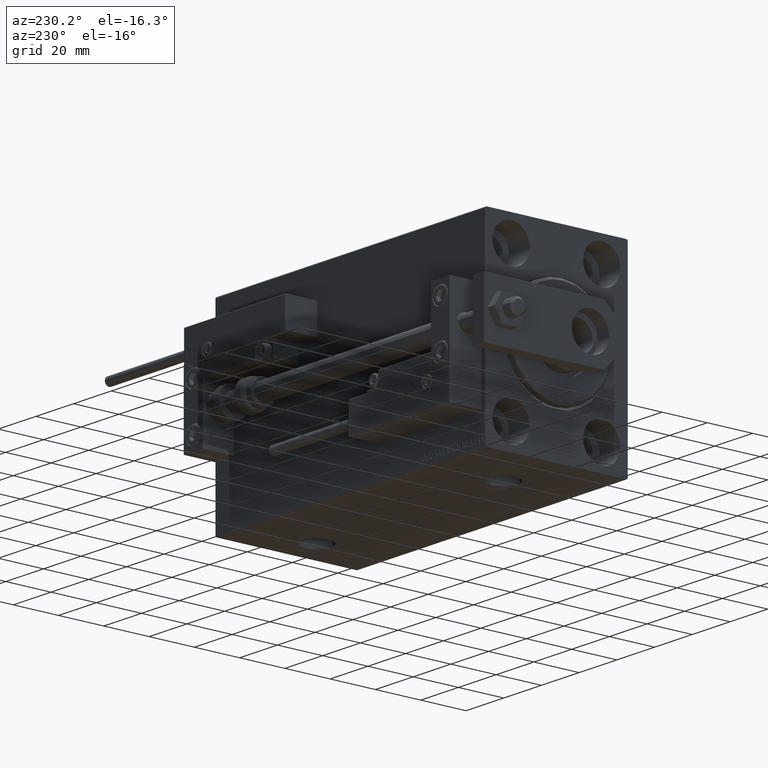
[diagram: clean part render]
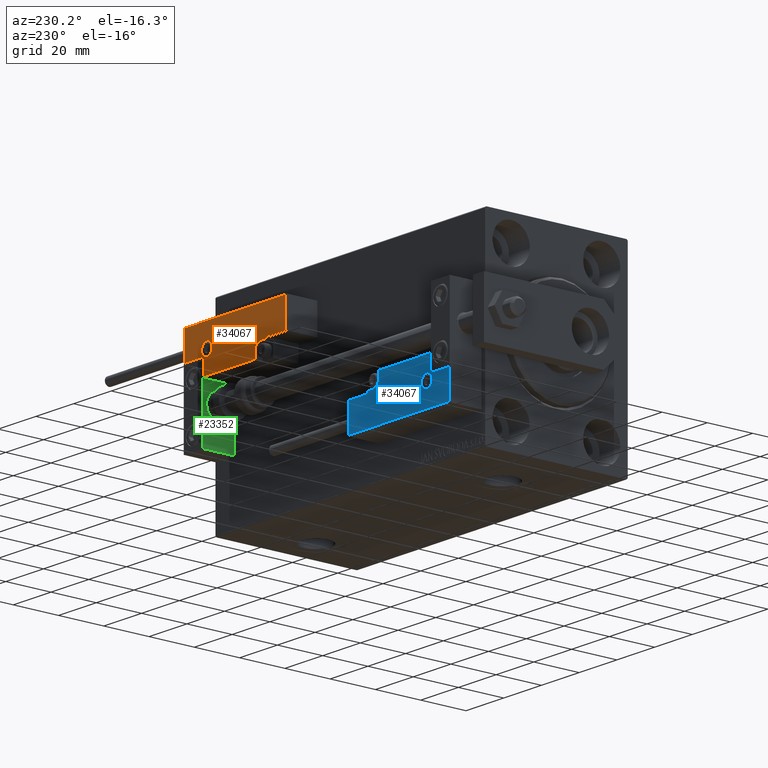
[diagram: same view with three faces highlighted in distinct colors, each labeled with its STEP entity id]
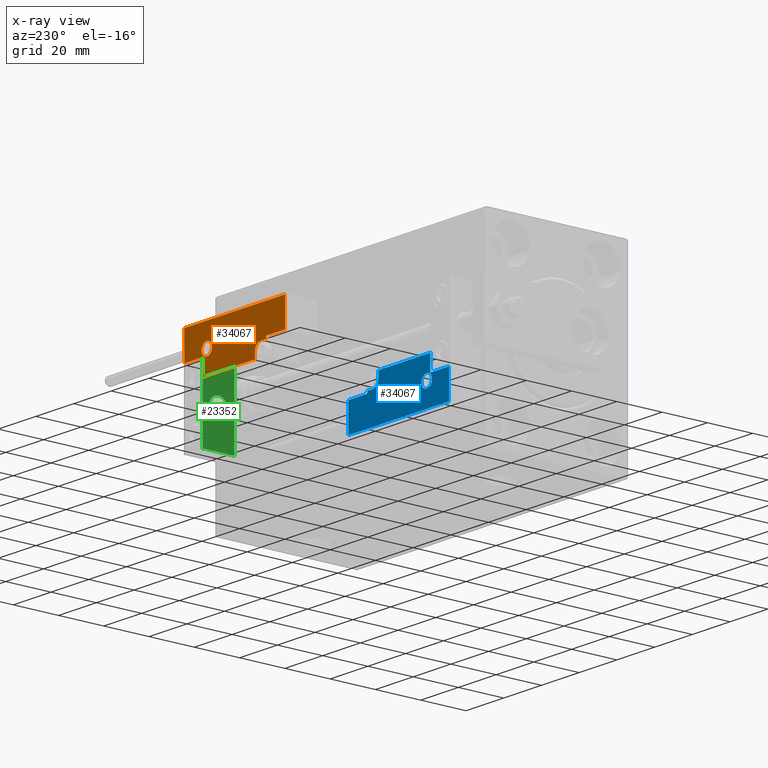
[diagram: x-ray of the same camera — body ghosted, the three highlighted faces saturated]
A machine part, auxiliary view with three faces highlighted in distinct colors.
The next image is the same camera in x-ray (body ghosted, the three faces saturated) — at least one of them is partly hidden behind the body in this view.
Their STEP definitions:

[orange] entity #34067 — the highlighted planar face has unit normal (0, 1, -0).
#299 = EDGE_CURVE ( 'NONE', #3765, #8961, #1059, .T. ) ;
#394 = LINE ( 'NONE', #16296, #12584 ) ;
#492 = CARTESIAN_POINT ( 'NONE',  ( -16.69999999999999218, 0.3000000000000032085, 14.00000000000000000 ) ) ;
#990 = DIRECTION ( 'NONE',  ( 0.000000000000000000, -0.000000000000000000, -1.000000000000000000 ) ) ;
#1059 = CIRCLE ( 'NONE', #29325, 2.800000000000000266 ) ;
#1379 = EDGE_CURVE ( 'NONE', #12995, #25292, #48627, .T. ) ;
#1950 = EDGE_CURVE ( 'NONE', #8961, #3765, #26888, .T. ) ;
#1976 = LINE ( 'NONE', #9274, #39701 ) ;
#2054 = ORIENTED_EDGE ( 'NONE', *, *, #299, .T. ) ;
#2216 = CARTESIAN_POINT ( 'NONE',  ( -26.69999999999994600, 7.300000000000005151, 14.00000000000000000 ) ) ;
#2810 = VERTEX_POINT ( 'NONE', #15941 ) ;
#3420 = ORIENTED_EDGE ( 'NONE', *, *, #1950, .T. ) ;
#3765 = VERTEX_POINT ( 'NONE', #29008 ) ;
#3784 = EDGE_CURVE ( 'NONE', #25292, #51216, #5232, .T. ) ;
#3834 = EDGE_CURVE ( 'NONE', #11864, #12995, #23997, .T. ) ;
#4554 = LINE ( 'NONE', #20445, #12106 ) ;
#5232 = LINE ( 'NONE', #32862, #17790 ) ;
#5248 = LINE ( 'NONE', #21146, #43187 ) ;
#5402 = CARTESIAN_POINT ( 'NONE',  ( 17.00000000000000000, 6.300000000000003375, 14.00000000000000000 ) ) ;
#5691 = ORIENTED_EDGE ( 'NONE', *, *, #3784, .T. ) ;
#6632 = CARTESIAN_POINT ( 'NONE',  ( 10.69999999999999929, 0.3000000000000032085, 14.00000000000000000 ) ) ;
#6730 = FACE_BOUND ( 'NONE', #21912, .T. ) ;
#7604 = CIRCLE ( 'NONE', #25065, 3.299999999999997158 ) ;
#8814 = CARTESIAN_POINT ( 'NONE',  ( -14.79999999999994920, 9.800000000000004263, 14.00000000000000000 ) ) ;
#8961 = VERTEX_POINT ( 'NONE', #13530 ) ;
#9274 = CARTESIAN_POINT ( 'NONE',  ( 16.69999999999999929, 7.000000000000009770, 14.00000000000000000 ) ) ;
#10658 = EDGE_CURVE ( 'NONE', #14326, #41003, #1976, .T. ) ;
#11851 = DIRECTION ( 'NONE',  ( -0.000000000000000000, 1.000000000000000000, -0.000000000000000000 ) ) ;
#11864 = VERTEX_POINT ( 'NONE', #17557 ) ;
#12106 = VECTOR ( 'NONE', #16532, 1000.000000000000000 ) ;
#12584 = VECTOR ( 'NONE', #11851, 1000.000000000000000 ) ;
#12888 = ORIENTED_EDGE ( 'NONE', *, *, #1379, .T. ) ;
#12931 = LINE ( 'NONE', #28837, #29520 ) ;
#12995 = VERTEX_POINT ( 'NONE', #2216 ) ;
#13530 = CARTESIAN_POINT ( 'NONE',  ( -17.59999999999994813, 9.800000000000004263, 14.00000000000000000 ) ) ;
#13687 = ORIENTED_EDGE ( 'NONE', *, *, #38841, .T. ) ;
#14326 = VERTEX_POINT ( 'NONE', #31319 ) ;
#14862 = VERTEX_POINT ( 'NONE', #6632 ) ;
#14894 = CARTESIAN_POINT ( 'NONE',  ( 13.99999999999999822, 6.300000000000001599, 14.00000000000000000 ) ) ;
#15941 = CARTESIAN_POINT ( 'NONE',  ( 10.69999999999999929, 3.000000000000003109, 14.00000000000000000 ) ) ;
#16115 = VECTOR ( 'NONE', #24783, 1000.000000000000000 ) ;
#16149 = CARTESIAN_POINT ( 'NONE',  ( 16.69999999999999929, 7.300000000000009592, 14.00000000000000000 ) ) ;
#16201 = EDGE_CURVE ( 'NONE', #31133, #11864, #5248, .T. ) ;
#16296 = CARTESIAN_POINT ( 'NONE',  ( 10.69999999999999929, 3.000000000000003109, 14.00000000000000000 ) ) ;
#16447 = DIRECTION ( 'NONE',  ( 0.000000000000000000, -1.000000000000000000, 0.000000000000000000 ) ) ;
#16532 = DIRECTION ( 'NONE',  ( 1.000000000000000000, -0.000000000000000000, 0.000000000000000000 ) ) ;
#17248 = PLANE ( 'NONE',  #48763 ) ;
#17358 = DIRECTION ( 'NONE',  ( 9.912705577010318647E-16, 1.000000000000000000, 0.000000000000000000 ) ) ;
#17557 = CARTESIAN_POINT ( 'NONE',  ( -26.69999999999993534, 19.70000000000002061, 14.00000000000000000 ) ) ;
#17790 = VECTOR ( 'NONE', #16447, 1000.000000000000000 ) ;
#18413 = DIRECTION ( 'NONE',  ( 1.000000000000000000, 0.000000000000000000, 0.000000000000000000 ) ) ;
#18545 = CARTESIAN_POINT ( 'NONE',  ( 26.70000000000006324, 19.70000000000001705, 14.00000000000000000 ) ) ;
#20096 = DIRECTION ( 'NONE',  ( 0.000000000000000000, -0.000000000000000000, -1.000000000000000000 ) ) ;
#20312 = ORIENTED_EDGE ( 'NONE', *, *, #33619, .T. ) ;
#20445 = CARTESIAN_POINT ( 'NONE',  ( 11.00000000000000000, 0.3000000000000032085, 14.00000000000000000 ) ) ;
#21032 = DIRECTION ( 'NONE',  ( 1.000000000000000000, 5.782411586589357639E-16, -0.000000000000000000 ) ) ;
#21146 = CARTESIAN_POINT ( 'NONE',  ( -26.99999999999993605, 19.70000000000002061, 14.00000000000000000 ) ) ;
#21912 = EDGE_LOOP ( 'NONE', ( #2054, #3420 ) ) ;
#22632 = FACE_OUTER_BOUND ( 'NONE', #26265, .T. ) ;
#22780 = DIRECTION ( 'NONE',  ( 1.000000000000000000, -1.734723475976796001E-16, 0.000000000000000000 ) ) ;
#23280 = LINE ( 'NONE', #51154, #27621 ) ;
#23997 = LINE ( 'NONE', #39901, #16115 ) ;
#24783 = DIRECTION ( 'NONE',  ( -8.006416042969869188E-16, -1.000000000000000000, 0.000000000000000000 ) ) ;
#25065 = AXIS2_PLACEMENT_3D ( 'NONE', #26240, #25214, #18413 ) ;
#25212 = VECTOR ( 'NONE', #37426, 1000.000000000000000 ) ;
#25214 = DIRECTION ( 'NONE',  ( 0.000000000000000000, -0.000000000000000000, -1.000000000000000000 ) ) ;
#25292 = VERTEX_POINT ( 'NONE', #48451 ) ;
#25501 = ORIENTED_EDGE ( 'NONE', *, *, #40209, .T. ) ;
#26053 = AXIS2_PLACEMENT_3D ( 'NONE', #44071, #20096, #47986 ) ;
#26240 = CARTESIAN_POINT ( 'NONE',  ( 13.99999999999999822, 3.000000000000002665, 14.00000000000000000 ) ) ;
#26265 = EDGE_LOOP ( 'NONE', ( #5691, #20312, #35503, #13687, #28625, #40462, #25501, #46708, #31206, #46631, #12888 ) ) ;
#26807 = CARTESIAN_POINT ( 'NONE',  ( 0.000000000000000000, 0.000000000000000000, 14.00000000000000000 ) ) ;
#26888 = CIRCLE ( 'NONE', #26053, 2.800000000000000266 ) ;
#27621 = VECTOR ( 'NONE', #22780, 1000.000000000000000 ) ;
#28625 = ORIENTED_EDGE ( 'NONE', *, *, #44966, .T. ) ;
#28837 = CARTESIAN_POINT ( 'NONE',  ( 26.70000000000006324, 20.00000000000001776, 14.00000000000000000 ) ) ;
#28980 = VERTEX_POINT ( 'NONE', #14894 ) ;
#29008 = CARTESIAN_POINT ( 'NONE',  ( -11.99999999999994849, 9.800000000000004263, 14.00000000000000000 ) ) ;
#29084 = DIRECTION ( 'NONE',  ( 0.000000000000000000, 1.000000000000000000, -0.000000000000000000 ) ) ;
#29325 = AXIS2_PLACEMENT_3D ( 'NONE', #8814, #990, #44251 ) ;
#29520 = VECTOR ( 'NONE', #29084, 1000.000000000000000 ) ;
#31133 = VERTEX_POINT ( 'NONE', #18545 ) ;
#31206 = ORIENTED_EDGE ( 'NONE', *, *, #16201, .T. ) ;
#31319 = CARTESIAN_POINT ( 'NONE',  ( 16.69999999999999929, 6.300000000000003375, 14.00000000000000000 ) ) ;
#32862 = CARTESIAN_POINT ( 'NONE',  ( -16.69999999999999218, 3.252606517456513302E-15, 14.00000000000000000 ) ) ;
#33154 = DIRECTION ( 'NONE',  ( -0.000000000000000000, 0.000000000000000000, 1.000000000000000000 ) ) ;
#33265 = VERTEX_POINT ( 'NONE', #34033 ) ;
#33389 = DIRECTION ( 'NONE',  ( -1.000000000000000000, 6.424901762877063495E-17, -0.000000000000000000 ) ) ;
#33509 = CARTESIAN_POINT ( 'NONE',  ( -16.99999999999999289, 7.300000000000003375, 14.00000000000000000 ) ) ;
#33619 = EDGE_CURVE ( 'NONE', #51216, #14862, #4554, .T. ) ;
#34033 = CARTESIAN_POINT ( 'NONE',  ( 26.70000000000006324, 7.300000000000007816, 14.00000000000000000 ) ) ;
#34067 = ADVANCED_FACE ( 'NONE', ( #6730, #22632 ), #17248, .T. ) ;
#34292 = VECTOR ( 'NONE', #21032, 1000.000000000000000 ) ;
#35392 = EDGE_CURVE ( 'NONE', #33265, #31133, #12931, .T. ) ;
#35503 = ORIENTED_EDGE ( 'NONE', *, *, #39002, .T. ) ;
#37426 = DIRECTION ( 'NONE',  ( 1.000000000000000000, -1.734723475976815230E-16, 0.000000000000000000 ) ) ;
#38541 = DIRECTION ( 'NONE',  ( 1.000000000000000000, 0.000000000000000000, 0.000000000000000000 ) ) ;
#38841 = EDGE_CURVE ( 'NONE', #2810, #28980, #7604, .T. ) ;
#39002 = EDGE_CURVE ( 'NONE', #14862, #2810, #394, .T. ) ;
#39701 = VECTOR ( 'NONE', #17358, 1000.000000000000000 ) ;
#39901 = CARTESIAN_POINT ( 'NONE',  ( -26.69999999999994600, 7.000000000000005329, 14.00000000000000000 ) ) ;
#40209 = EDGE_CURVE ( 'NONE', #41003, #33265, #23280, .T. ) ;
#40462 = ORIENTED_EDGE ( 'NONE', *, *, #10658, .T. ) ;
#41003 = VERTEX_POINT ( 'NONE', #16149 ) ;
#43187 = VECTOR ( 'NONE', #33389, 1000.000000000000000 ) ;
#44071 = CARTESIAN_POINT ( 'NONE',  ( -14.79999999999994920, 9.800000000000004263, 14.00000000000000000 ) ) ;
#44251 = DIRECTION ( 'NONE',  ( 1.000000000000000000, 0.000000000000000000, 0.000000000000000000 ) ) ;
#44762 = LINE ( 'NONE', #5402, #34292 ) ;
#44966 = EDGE_CURVE ( 'NONE', #28980, #14326, #44762, .T. ) ;
#46631 = ORIENTED_EDGE ( 'NONE', *, *, #3834, .T. ) ;
#46708 = ORIENTED_EDGE ( 'NONE', *, *, #35392, .T. ) ;
#47986 = DIRECTION ( 'NONE',  ( 1.000000000000000000, 0.000000000000000000, 0.000000000000000000 ) ) ;
#48451 = CARTESIAN_POINT ( 'NONE',  ( -16.69999999999999218, 7.300000000000003375, 14.00000000000000000 ) ) ;
#48627 = LINE ( 'NONE', #33509, #25212 ) ;
#48763 = AXIS2_PLACEMENT_3D ( 'NONE', #26807, #33154, #38541 ) ;
#51154 = CARTESIAN_POINT ( 'NONE',  ( 27.00000000000006395, 7.300000000000007816, 14.00000000000000000 ) ) ;
#51216 = VERTEX_POINT ( 'NONE', #492 ) ;

[blue] entity #34067 — the highlighted planar face has unit normal (-0, 1, -0).
#299 = EDGE_CURVE ( 'NONE', #3765, #8961, #1059, .T. ) ;
#394 = LINE ( 'NONE', #16296, #12584 ) ;
#492 = CARTESIAN_POINT ( 'NONE',  ( -16.69999999999999218, 0.3000000000000032085, 14.00000000000000000 ) ) ;
#990 = DIRECTION ( 'NONE',  ( 0.000000000000000000, -0.000000000000000000, -1.000000000000000000 ) ) ;
#1059 = CIRCLE ( 'NONE', #29325, 2.800000000000000266 ) ;
#1379 = EDGE_CURVE ( 'NONE', #12995, #25292, #48627, .T. ) ;
#1950 = EDGE_CURVE ( 'NONE', #8961, #3765, #26888, .T. ) ;
#1976 = LINE ( 'NONE', #9274, #39701 ) ;
#2054 = ORIENTED_EDGE ( 'NONE', *, *, #299, .T. ) ;
#2216 = CARTESIAN_POINT ( 'NONE',  ( -26.69999999999994600, 7.300000000000005151, 14.00000000000000000 ) ) ;
#2810 = VERTEX_POINT ( 'NONE', #15941 ) ;
#3420 = ORIENTED_EDGE ( 'NONE', *, *, #1950, .T. ) ;
#3765 = VERTEX_POINT ( 'NONE', #29008 ) ;
#3784 = EDGE_CURVE ( 'NONE', #25292, #51216, #5232, .T. ) ;
#3834 = EDGE_CURVE ( 'NONE', #11864, #12995, #23997, .T. ) ;
#4554 = LINE ( 'NONE', #20445, #12106 ) ;
#5232 = LINE ( 'NONE', #32862, #17790 ) ;
#5248 = LINE ( 'NONE', #21146, #43187 ) ;
#5402 = CARTESIAN_POINT ( 'NONE',  ( 17.00000000000000000, 6.300000000000003375, 14.00000000000000000 ) ) ;
#5691 = ORIENTED_EDGE ( 'NONE', *, *, #3784, .T. ) ;
#6632 = CARTESIAN_POINT ( 'NONE',  ( 10.69999999999999929, 0.3000000000000032085, 14.00000000000000000 ) ) ;
#6730 = FACE_BOUND ( 'NONE', #21912, .T. ) ;
#7604 = CIRCLE ( 'NONE', #25065, 3.299999999999997158 ) ;
#8814 = CARTESIAN_POINT ( 'NONE',  ( -14.79999999999994920, 9.800000000000004263, 14.00000000000000000 ) ) ;
#8961 = VERTEX_POINT ( 'NONE', #13530 ) ;
#9274 = CARTESIAN_POINT ( 'NONE',  ( 16.69999999999999929, 7.000000000000009770, 14.00000000000000000 ) ) ;
#10658 = EDGE_CURVE ( 'NONE', #14326, #41003, #1976, .T. ) ;
#11851 = DIRECTION ( 'NONE',  ( -0.000000000000000000, 1.000000000000000000, -0.000000000000000000 ) ) ;
#11864 = VERTEX_POINT ( 'NONE', #17557 ) ;
#12106 = VECTOR ( 'NONE', #16532, 1000.000000000000000 ) ;
#12584 = VECTOR ( 'NONE', #11851, 1000.000000000000000 ) ;
#12888 = ORIENTED_EDGE ( 'NONE', *, *, #1379, .T. ) ;
#12931 = LINE ( 'NONE', #28837, #29520 ) ;
#12995 = VERTEX_POINT ( 'NONE', #2216 ) ;
#13530 = CARTESIAN_POINT ( 'NONE',  ( -17.59999999999994813, 9.800000000000004263, 14.00000000000000000 ) ) ;
#13687 = ORIENTED_EDGE ( 'NONE', *, *, #38841, .T. ) ;
#14326 = VERTEX_POINT ( 'NONE', #31319 ) ;
#14862 = VERTEX_POINT ( 'NONE', #6632 ) ;
#14894 = CARTESIAN_POINT ( 'NONE',  ( 13.99999999999999822, 6.300000000000001599, 14.00000000000000000 ) ) ;
#15941 = CARTESIAN_POINT ( 'NONE',  ( 10.69999999999999929, 3.000000000000003109, 14.00000000000000000 ) ) ;
#16115 = VECTOR ( 'NONE', #24783, 1000.000000000000000 ) ;
#16149 = CARTESIAN_POINT ( 'NONE',  ( 16.69999999999999929, 7.300000000000009592, 14.00000000000000000 ) ) ;
#16201 = EDGE_CURVE ( 'NONE', #31133, #11864, #5248, .T. ) ;
#16296 = CARTESIAN_POINT ( 'NONE',  ( 10.69999999999999929, 3.000000000000003109, 14.00000000000000000 ) ) ;
#16447 = DIRECTION ( 'NONE',  ( 0.000000000000000000, -1.000000000000000000, 0.000000000000000000 ) ) ;
#16532 = DIRECTION ( 'NONE',  ( 1.000000000000000000, -0.000000000000000000, 0.000000000000000000 ) ) ;
#17248 = PLANE ( 'NONE',  #48763 ) ;
#17358 = DIRECTION ( 'NONE',  ( 9.912705577010318647E-16, 1.000000000000000000, 0.000000000000000000 ) ) ;
#17557 = CARTESIAN_POINT ( 'NONE',  ( -26.69999999999993534, 19.70000000000002061, 14.00000000000000000 ) ) ;
#17790 = VECTOR ( 'NONE', #16447, 1000.000000000000000 ) ;
#18413 = DIRECTION ( 'NONE',  ( 1.000000000000000000, 0.000000000000000000, 0.000000000000000000 ) ) ;
#18545 = CARTESIAN_POINT ( 'NONE',  ( 26.70000000000006324, 19.70000000000001705, 14.00000000000000000 ) ) ;
#20096 = DIRECTION ( 'NONE',  ( 0.000000000000000000, -0.000000000000000000, -1.000000000000000000 ) ) ;
#20312 = ORIENTED_EDGE ( 'NONE', *, *, #33619, .T. ) ;
#20445 = CARTESIAN_POINT ( 'NONE',  ( 11.00000000000000000, 0.3000000000000032085, 14.00000000000000000 ) ) ;
#21032 = DIRECTION ( 'NONE',  ( 1.000000000000000000, 5.782411586589357639E-16, -0.000000000000000000 ) ) ;
#21146 = CARTESIAN_POINT ( 'NONE',  ( -26.99999999999993605, 19.70000000000002061, 14.00000000000000000 ) ) ;
#21912 = EDGE_LOOP ( 'NONE', ( #2054, #3420 ) ) ;
#22632 = FACE_OUTER_BOUND ( 'NONE', #26265, .T. ) ;
#22780 = DIRECTION ( 'NONE',  ( 1.000000000000000000, -1.734723475976796001E-16, 0.000000000000000000 ) ) ;
#23280 = LINE ( 'NONE', #51154, #27621 ) ;
#23997 = LINE ( 'NONE', #39901, #16115 ) ;
#24783 = DIRECTION ( 'NONE',  ( -8.006416042969869188E-16, -1.000000000000000000, 0.000000000000000000 ) ) ;
#25065 = AXIS2_PLACEMENT_3D ( 'NONE', #26240, #25214, #18413 ) ;
#25212 = VECTOR ( 'NONE', #37426, 1000.000000000000000 ) ;
#25214 = DIRECTION ( 'NONE',  ( 0.000000000000000000, -0.000000000000000000, -1.000000000000000000 ) ) ;
#25292 = VERTEX_POINT ( 'NONE', #48451 ) ;
#25501 = ORIENTED_EDGE ( 'NONE', *, *, #40209, .T. ) ;
#26053 = AXIS2_PLACEMENT_3D ( 'NONE', #44071, #20096, #47986 ) ;
#26240 = CARTESIAN_POINT ( 'NONE',  ( 13.99999999999999822, 3.000000000000002665, 14.00000000000000000 ) ) ;
#26265 = EDGE_LOOP ( 'NONE', ( #5691, #20312, #35503, #13687, #28625, #40462, #25501, #46708, #31206, #46631, #12888 ) ) ;
#26807 = CARTESIAN_POINT ( 'NONE',  ( 0.000000000000000000, 0.000000000000000000, 14.00000000000000000 ) ) ;
#26888 = CIRCLE ( 'NONE', #26053, 2.800000000000000266 ) ;
#27621 = VECTOR ( 'NONE', #22780, 1000.000000000000000 ) ;
#28625 = ORIENTED_EDGE ( 'NONE', *, *, #44966, .T. ) ;
#28837 = CARTESIAN_POINT ( 'NONE',  ( 26.70000000000006324, 20.00000000000001776, 14.00000000000000000 ) ) ;
#28980 = VERTEX_POINT ( 'NONE', #14894 ) ;
#29008 = CARTESIAN_POINT ( 'NONE',  ( -11.99999999999994849, 9.800000000000004263, 14.00000000000000000 ) ) ;
#29084 = DIRECTION ( 'NONE',  ( 0.000000000000000000, 1.000000000000000000, -0.000000000000000000 ) ) ;
#29325 = AXIS2_PLACEMENT_3D ( 'NONE', #8814, #990, #44251 ) ;
#29520 = VECTOR ( 'NONE', #29084, 1000.000000000000000 ) ;
#31133 = VERTEX_POINT ( 'NONE', #18545 ) ;
#31206 = ORIENTED_EDGE ( 'NONE', *, *, #16201, .T. ) ;
#31319 = CARTESIAN_POINT ( 'NONE',  ( 16.69999999999999929, 6.300000000000003375, 14.00000000000000000 ) ) ;
#32862 = CARTESIAN_POINT ( 'NONE',  ( -16.69999999999999218, 3.252606517456513302E-15, 14.00000000000000000 ) ) ;
#33154 = DIRECTION ( 'NONE',  ( -0.000000000000000000, 0.000000000000000000, 1.000000000000000000 ) ) ;
#33265 = VERTEX_POINT ( 'NONE', #34033 ) ;
#33389 = DIRECTION ( 'NONE',  ( -1.000000000000000000, 6.424901762877063495E-17, -0.000000000000000000 ) ) ;
#33509 = CARTESIAN_POINT ( 'NONE',  ( -16.99999999999999289, 7.300000000000003375, 14.00000000000000000 ) ) ;
#33619 = EDGE_CURVE ( 'NONE', #51216, #14862, #4554, .T. ) ;
#34033 = CARTESIAN_POINT ( 'NONE',  ( 26.70000000000006324, 7.300000000000007816, 14.00000000000000000 ) ) ;
#34067 = ADVANCED_FACE ( 'NONE', ( #6730, #22632 ), #17248, .T. ) ;
#34292 = VECTOR ( 'NONE', #21032, 1000.000000000000000 ) ;
#35392 = EDGE_CURVE ( 'NONE', #33265, #31133, #12931, .T. ) ;
#35503 = ORIENTED_EDGE ( 'NONE', *, *, #39002, .T. ) ;
#37426 = DIRECTION ( 'NONE',  ( 1.000000000000000000, -1.734723475976815230E-16, 0.000000000000000000 ) ) ;
#38541 = DIRECTION ( 'NONE',  ( 1.000000000000000000, 0.000000000000000000, 0.000000000000000000 ) ) ;
#38841 = EDGE_CURVE ( 'NONE', #2810, #28980, #7604, .T. ) ;
#39002 = EDGE_CURVE ( 'NONE', #14862, #2810, #394, .T. ) ;
#39701 = VECTOR ( 'NONE', #17358, 1000.000000000000000 ) ;
#39901 = CARTESIAN_POINT ( 'NONE',  ( -26.69999999999994600, 7.000000000000005329, 14.00000000000000000 ) ) ;
#40209 = EDGE_CURVE ( 'NONE', #41003, #33265, #23280, .T. ) ;
#40462 = ORIENTED_EDGE ( 'NONE', *, *, #10658, .T. ) ;
#41003 = VERTEX_POINT ( 'NONE', #16149 ) ;
#43187 = VECTOR ( 'NONE', #33389, 1000.000000000000000 ) ;
#44071 = CARTESIAN_POINT ( 'NONE',  ( -14.79999999999994920, 9.800000000000004263, 14.00000000000000000 ) ) ;
#44251 = DIRECTION ( 'NONE',  ( 1.000000000000000000, 0.000000000000000000, 0.000000000000000000 ) ) ;
#44762 = LINE ( 'NONE', #5402, #34292 ) ;
#44966 = EDGE_CURVE ( 'NONE', #28980, #14326, #44762, .T. ) ;
#46631 = ORIENTED_EDGE ( 'NONE', *, *, #3834, .T. ) ;
#46708 = ORIENTED_EDGE ( 'NONE', *, *, #35392, .T. ) ;
#47986 = DIRECTION ( 'NONE',  ( 1.000000000000000000, 0.000000000000000000, 0.000000000000000000 ) ) ;
#48451 = CARTESIAN_POINT ( 'NONE',  ( -16.69999999999999218, 7.300000000000003375, 14.00000000000000000 ) ) ;
#48627 = LINE ( 'NONE', #33509, #25212 ) ;
#48763 = AXIS2_PLACEMENT_3D ( 'NONE', #26807, #33154, #38541 ) ;
#51154 = CARTESIAN_POINT ( 'NONE',  ( 27.00000000000006395, 7.300000000000007816, 14.00000000000000000 ) ) ;
#51216 = VERTEX_POINT ( 'NONE', #492 ) ;

[green] entity #23352 — the highlighted planar face has unit normal (-1, 0, 0).
#72 = CARTESIAN_POINT ( 'NONE',  ( 0.000000000000000000, 4.898587196589412829E-16, -4.000000000000000000 ) ) ;
#405 = EDGE_CURVE ( 'NONE', #14975, #38295, #47907, .T. ) ;
#738 = EDGE_CURVE ( 'NONE', #28561, #40764, #23519, .T. ) ;
#1126 = EDGE_CURVE ( 'NONE', #38295, #50255, #35618, .T. ) ;
#1302 = DIRECTION ( 'NONE',  ( 0.000000000000000000, -1.000000000000000000, 0.000000000000000000 ) ) ;
#1936 = CARTESIAN_POINT ( 'NONE',  ( 0.000000000000000000, 0.000000000000000000, 0.000000000000000000 ) ) ;
#2708 = DIRECTION ( 'NONE',  ( -1.000000000000000000, 0.000000000000000000, -0.000000000000000000 ) ) ;
#3648 = EDGE_LOOP ( 'NONE', ( #4277, #12083, #24008, #27587 ) ) ;
#4277 = ORIENTED_EDGE ( 'NONE', *, *, #1126, .F. ) ;
#4657 = DIRECTION ( 'NONE',  ( 0.000000000000000000, -1.000000000000000000, 0.000000000000000000 ) ) ;
#6039 = VECTOR ( 'NONE', #4657, 1000.000000000000000 ) ;
#6042 = VECTOR ( 'NONE', #1302, 1000.000000000000000 ) ;
#8386 = CARTESIAN_POINT ( 'NONE',  ( 0.000000000000000000, 0.000000000000000000, 4.000000000000000000 ) ) ;
#8557 = DIRECTION ( 'NONE',  ( 0.000000000000000000, 0.000000000000000000, 1.000000000000000000 ) ) ;
#9751 = DIRECTION ( 'NONE',  ( -1.000000000000000000, -0.000000000000000000, -0.000000000000000000 ) ) ;
#11999 = CARTESIAN_POINT ( 'NONE',  ( 0.000000000000000000, -7.000000000000000000, -16.00000000000000711 ) ) ;
#12083 = ORIENTED_EDGE ( 'NONE', *, *, #405, .F. ) ;
#13917 = FACE_BOUND ( 'NONE', #15886, .T. ) ;
#14434 = FACE_OUTER_BOUND ( 'NONE', #3648, .T. ) ;
#14975 = VERTEX_POINT ( 'NONE', #26964 ) ;
#15886 = EDGE_LOOP ( 'NONE', ( #23457, #44260 ) ) ;
#17826 = CARTESIAN_POINT ( 'NONE',  ( 0.000000000000000000, 0.000000000000000000, 0.000000000000000000 ) ) ;
#23164 = DIRECTION ( 'NONE',  ( 0.000000000000000000, 0.000000000000000000, -1.000000000000000000 ) ) ;
#23352 = ADVANCED_FACE ( 'NONE', ( #13917, #14434 ), #38169, .T. ) ;
#23412 = VECTOR ( 'NONE', #23164, 1000.000000000000000 ) ;
#23457 = ORIENTED_EDGE ( 'NONE', *, *, #42690, .F. ) ;
#23519 = CIRCLE ( 'NONE', #46815, 4.000000000000000000 ) ;
#24008 = ORIENTED_EDGE ( 'NONE', *, *, #43062, .T. ) ;
#24098 = VERTEX_POINT ( 'NONE', #35427 ) ;
#26424 = DIRECTION ( 'NONE',  ( 0.000000000000000000, 0.000000000000000000, 1.000000000000000000 ) ) ;
#26964 = CARTESIAN_POINT ( 'NONE',  ( 0.000000000000000000, 7.000000000000000000, 15.99999999999999289 ) ) ;
#27545 = CIRCLE ( 'NONE', #34215, 4.000000000000000000 ) ;
#27587 = ORIENTED_EDGE ( 'NONE', *, *, #45650, .T. ) ;
#28561 = VERTEX_POINT ( 'NONE', #72 ) ;
#29177 = LINE ( 'NONE', #37018, #6042 ) ;
#30334 = DIRECTION ( 'NONE',  ( -0.000000000000000000, 0.000000000000000000, 1.000000000000000000 ) ) ;
#32540 = DIRECTION ( 'NONE',  ( -1.000000000000000000, -0.000000000000000000, -0.000000000000000000 ) ) ;
#34215 = AXIS2_PLACEMENT_3D ( 'NONE', #1936, #9751, #26424 ) ;
#35427 = CARTESIAN_POINT ( 'NONE',  ( 0.000000000000000000, 7.000000000000000000, -16.00000000000000711 ) ) ;
#35618 = LINE ( 'NONE', #43679, #41830 ) ;
#35667 = LINE ( 'NONE', #35927, #23412 ) ;
#35927 = CARTESIAN_POINT ( 'NONE',  ( 0.000000000000000000, 7.000000000000000000, 15.99999999999999289 ) ) ;
#37018 = CARTESIAN_POINT ( 'NONE',  ( 0.000000000000000000, 7.000000000000000000, -16.00000000000000711 ) ) ;
#38169 = PLANE ( 'NONE',  #38360 ) ;
#38295 = VERTEX_POINT ( 'NONE', #39751 ) ;
#38360 = AXIS2_PLACEMENT_3D ( 'NONE', #17826, #2708, #30334 ) ;
#39751 = CARTESIAN_POINT ( 'NONE',  ( 0.000000000000000000, -7.000000000000000000, 15.99999999999999289 ) ) ;
#40764 = VERTEX_POINT ( 'NONE', #8386 ) ;
#41830 = VECTOR ( 'NONE', #47847, 1000.000000000000000 ) ;
#42690 = EDGE_CURVE ( 'NONE', #40764, #28561, #27545, .T. ) ;
#43062 = EDGE_CURVE ( 'NONE', #14975, #24098, #35667, .T. ) ;
#43679 = CARTESIAN_POINT ( 'NONE',  ( 0.000000000000000000, -7.000000000000000000, 15.99999999999999289 ) ) ;
#43740 = CARTESIAN_POINT ( 'NONE',  ( 0.000000000000000000, 7.000000000000000000, 15.99999999999999289 ) ) ;
#44260 = ORIENTED_EDGE ( 'NONE', *, *, #738, .F. ) ;
#45650 = EDGE_CURVE ( 'NONE', #24098, #50255, #29177, .T. ) ;
#46815 = AXIS2_PLACEMENT_3D ( 'NONE', #46949, #32540, #8557 ) ;
#46949 = CARTESIAN_POINT ( 'NONE',  ( 0.000000000000000000, 0.000000000000000000, 0.000000000000000000 ) ) ;
#47847 = DIRECTION ( 'NONE',  ( 0.000000000000000000, 0.000000000000000000, -1.000000000000000000 ) ) ;
#47907 = LINE ( 'NONE', #43740, #6039 ) ;
#50255 = VERTEX_POINT ( 'NONE', #11999 ) ;